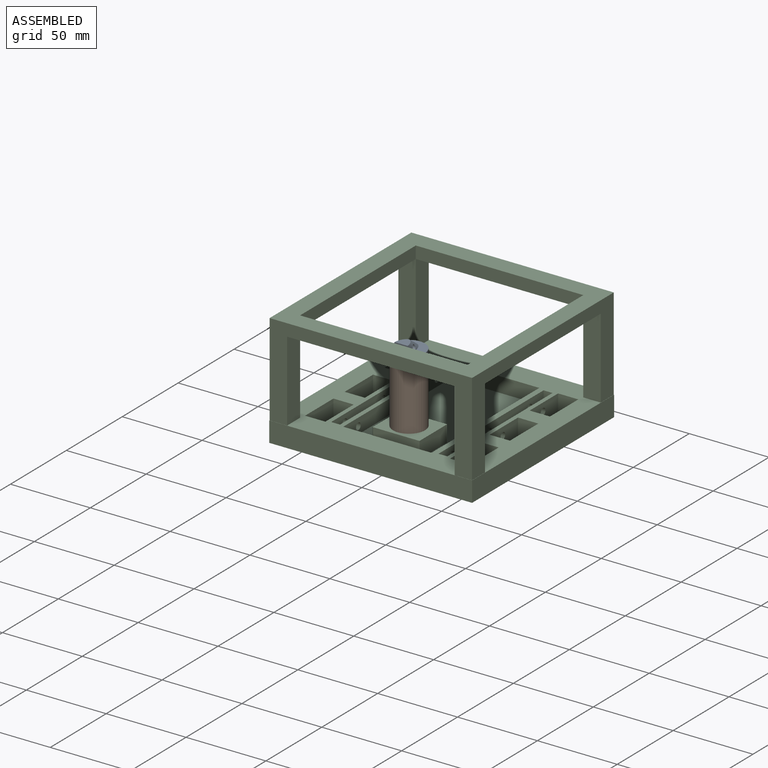
[diagram: assembled view]
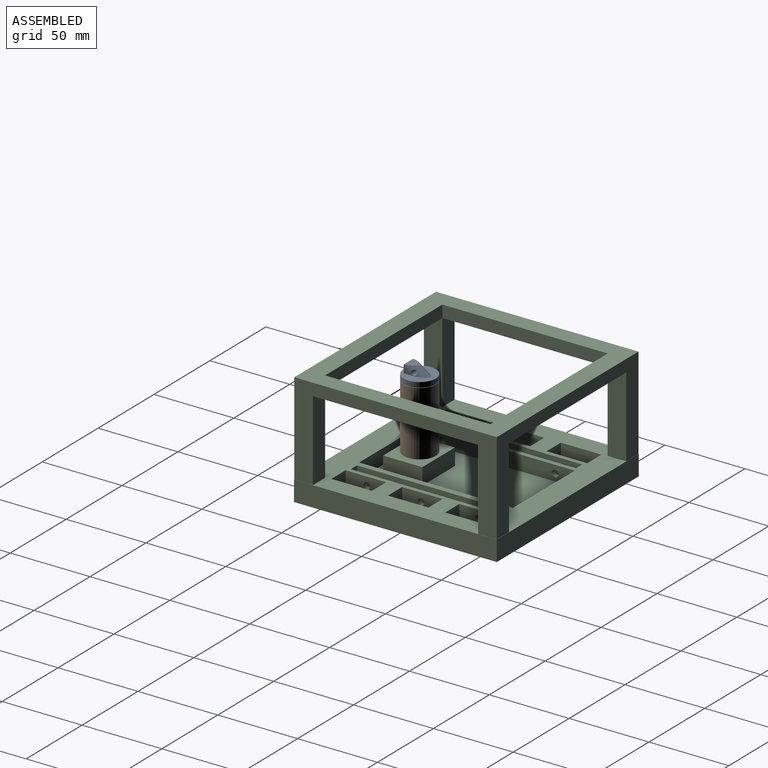
[diagram: assembled view, second angle]
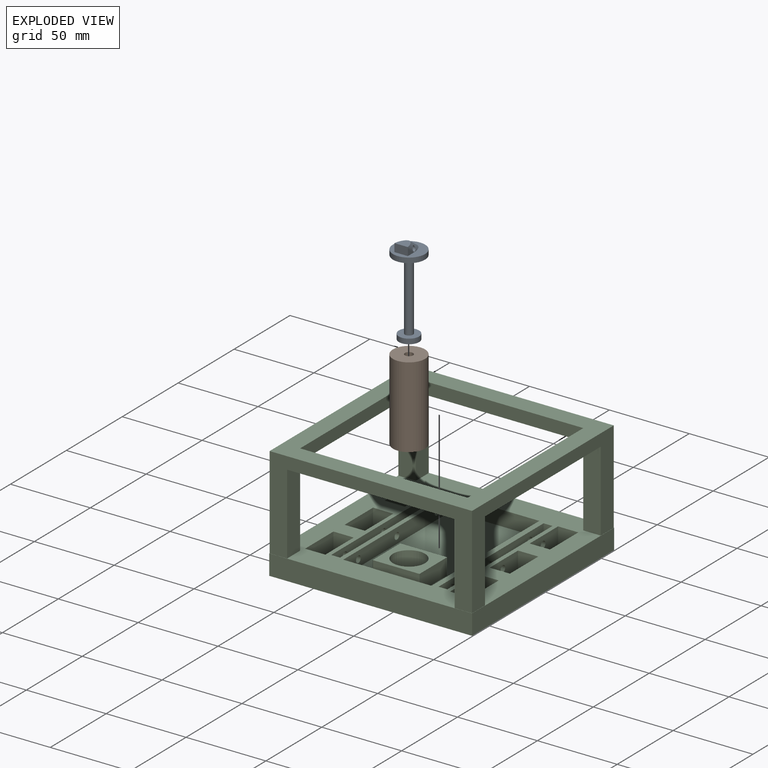
[diagram: exploded view]
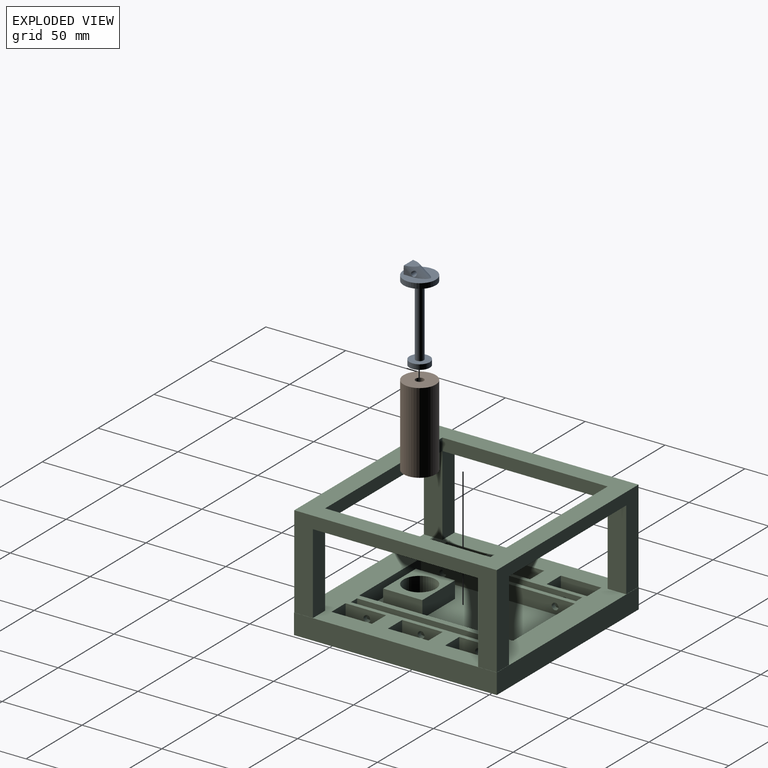
[diagram: exploded view, second angle]
ASSEMBLY  parts=3 mates=2
PART A: 14 faces, bbox 20.1x20.1x59.2 mm
  f0: plane 20.11x20.11mm, normal (0,0,1), area 217mm2, adj f5,f7,f8,f9,f11,f12
  f1: cylinder r=6.35mm len=12.7mm, axis (0,0,-1), area 126.7mm2, adj f2,f3
  f2: plane 12.7x12.7mm, normal (0,0,1), area 106.4mm2, adj f1,f4
  f3: plane 12.7x12.7mm, normal (0,0,-1), area 126.7mm2, adj f1
  f4: cylinder r=2.54mm len=44.45mm, axis (0,0,-1), area 709.4mm2, adj f2,f6
  f5: cylinder r=10.05mm len=20.11mm, axis (0,0,-1), area 200.6mm2, adj f0,f6
  f6: plane 20.11x20.11mm, normal (0,0,-1), area 297.3mm2, adj f4,f5
  f7: plane 5.42x3.9mm, normal (-1,0,0), area 10.6mm2, adj f0,f8,f11
  f8: plane 8.47x5.08mm, normal (0,-1,0), area 42.9mm2, adj f0,f7,f9,f10,f11,f12
  f9: plane 5.42x3.9mm, normal (1,0,0), area 10.6mm2, adj f0,f8,f12
  f10: plane 8.28x6.94mm, normal (0,0,1), area 40.9mm2, adj f8,f11,f12
  f11: cylinder r=5.08mm len=14.56mm, axis (0,0.81,-0.58), area 52.8mm2, adj f0,f7,f8,f10,f12,f13
  f12: cylinder r=5.08mm len=14.56mm, axis (0,-0.81,0.58), area 52.9mm2, adj f0,f8,f9,f10,f11,f13
  f13: cylinder r=1.54mm len=8.44mm, axis (-1,0,0), area 72.3mm2, adj f11,f12
PART B: 9 faces, bbox 20.1x20.1x50.8 mm
  f0: plane 12.7x12.7mm, normal (0,0,-1), area 106.4mm2, adj f1,f3
  f1: cylinder r=6.35mm len=45.47mm, axis (0,0,1), area 1814mm2, adj f0,f2
  f2: plane 12.7x12.7mm, normal (0,0,1), area 126.7mm2, adj f1
  f3: cylinder r=2.54mm len=5.08mm, axis (0,0,1), area 40.5mm2, adj f0,f8
  f4: cylinder r=10.05mm len=48.26mm, axis (0,0,-1), area 3048.6mm2, adj f5,f7
  f5: plane 20.11x20.11mm, normal (0,0,-1), area 317.6mm2, adj f4
  f6: cylinder r=10.07mm len=20.14mm, axis (0,0,1), area 160.7mm2, adj f7,f8
  f7: plane 20.14x20.14mm, normal (0,0,-1), area 1.1mm2, adj f4,f6
  f8: plane 20.14x20.14mm, normal (0,0,1), area 298.4mm2, adj f3,f6
PART C: 85 faces, bbox 127x127x70.6 mm
  f0: plane 103.5x7.6mm, normal (1,0,0), area 787mm2, adj f4,f66,f74,f77
  f1: plane 50.31x11.63mm, normal (-1,0,0), area 585.1mm2, adj f3,f9,f70,f76
  f2: plane 50.31x10.93mm, normal (0,-1,0), area 550mm2, adj f9,f67,f68,f75
  f3: plane 50.31x10.93mm, normal (0,1,0), area 550mm2, adj f1,f9,f68,f75
  f4: plane 104.9x7.6mm, normal (0,-1,0), area 797.6mm2, adj f0,f66,f72,f73
  f5: plane 50.31x11.63mm, normal (1,0,0), area 585.1mm2, adj f9,f64,f65,f73
  f6: plane 96.29x9.4mm, normal (-1,0,0), area 864mm2, adj f9,f43,f44,f45,f57,f58,f59
  f7: plane 93.97x9.91mm, normal (-1,0,0), area 889.9mm2, adj f9,f54,f55,f56,f60,f61,f62
  f8: plane 93.97x9.91mm, normal (1,0,0), area 889.9mm2, adj f9,f54,f55,f56,f57,f58,f59
  f9: plane 127x127mm, normal (0,0,1), area 7305.7mm2, adj f1,f2,f3,f5,f6,f7,f8,f13
  f10: cylinder r=2.08mm len=4.17mm, axis (1,0,0), area 36.6mm2, adj f13,f50
  f11: cylinder r=2.08mm len=4.17mm, axis (1,0,0), area 36.6mm2, adj f13,f50
  f12: cylinder r=2.08mm len=4.17mm, axis (1,0,0), area 36.6mm2, adj f13,f50
  f13: plane 96.29x9.4mm, normal (1,0,0), area 864mm2, adj f9,f10,f11,f12,f43,f44,f45
  f14: plane 127x127mm, normal (0,0,-1), area 14193.5mm2, adj f15,f16,f17,f18,f19,f20,f21,f22
  f15: plane 127x12.7mm, normal (-1,0,0), area 1612.9mm2, adj f9,f14,f16,f18
  f16: plane 127x12.7mm, normal (0,-1,0), area 1612.9mm2, adj f9,f14,f15,f17
  f17: plane 127x12.7mm, normal (1,0,0), area 1612.9mm2, adj f9,f14,f16,f18
  f18: plane 127x12.7mm, normal (0,1,0), area 1612.9mm2, adj f9,f14,f15,f17
  f19: plane 12.7x12.7mm, normal (0,-1,0), area 161.3mm2, adj f9,f14,f20,f22
  f20: plane 25.4x12.7mm, normal (1,0,0), area 322.6mm2, adj f9,f14,f19,f21
  f21: plane 12.7x12.7mm, normal (0,1,0), area 161.3mm2, adj f9,f14,f20,f22
  f22: plane 25.4x12.7mm, normal (-1,0,0), area 308.9mm2, adj f9,f14,f19,f21,f46
  f23: plane 25.4x12.7mm, normal (-1,0,0), area 322.6mm2, adj f9,f14,f24,f26
  f24: plane 12.7x12.7mm, normal (0,-1,0), area 161.3mm2, adj f9,f14,f23,f25
  f25: plane 25.4x12.7mm, normal (1,0,0), area 308.9mm2, adj f9,f14,f24,f26,f61
  f26: plane 12.7x12.7mm, normal (0,1,0), area 161.3mm2, adj f9,f14,f23,f25
  f27: plane 25.4x12.7mm, normal (-1,0,0), area 322.6mm2, adj f9,f14,f28,f30
  f28: plane 12.7x12.7mm, normal (0,-1,0), area 161.3mm2, adj f9,f14,f27,f29
  f29: plane 25.4x12.7mm, normal (1,0,0), area 308.9mm2, adj f9,f14,f28,f30,f62
  f30: plane 12.7x12.7mm, normal (0,1,0), area 161.3mm2, adj f9,f14,f27,f29
  f31: plane 12.7x12.7mm, normal (0,1,0), area 161.3mm2, adj f9,f14,f32,f34
  f32: plane 25.4x12.7mm, normal (-1,0,0), area 308.9mm2, adj f9,f14,f31,f33,f48
  f33: plane 12.7x12.7mm, normal (0,-1,0), area 161.3mm2, adj f9,f14,f32,f34
  f34: plane 25.4x12.7mm, normal (1,0,0), area 322.6mm2, adj f9,f14,f31,f33
  f35: plane 25.4x12.7mm, normal (-1,0,0), area 322.6mm2, adj f9,f14,f36,f38
  f36: plane 12.7x12.7mm, normal (0,-1,0), area 161.3mm2, adj f9,f14,f35,f37
  f37: plane 25.4x12.7mm, normal (1,0,0), area 308.9mm2, adj f9,f14,f36,f38,f60
  f38: plane 12.7x12.7mm, normal (0,1,0), area 161.3mm2, adj f9,f14,f35,f37
  f39: plane 12.7x12.7mm, normal (0,-1,0), area 161.3mm2, adj f9,f14,f40,f42
  f40: plane 25.4x12.7mm, normal (1,0,0), area 322.6mm2, adj f9,f14,f39,f41
  f41: plane 12.7x12.7mm, normal (0,1,0), area 161.3mm2, adj f9,f14,f40,f42
  f42: plane 25.4x12.7mm, normal (-1,0,0), area 308.9mm2, adj f9,f14,f39,f41,f47
  f43: plane 55.36x9.4mm, normal (0,-1,0), area 520.2mm2, adj f6,f9,f13,f45
  f44: plane 55.36x9.4mm, normal (0,1,0), area 520.2mm2, adj f6,f9,f13,f45
  f45: plane 96.29x55.36mm, normal (0,0,1), area 4613.1mm2, adj f6,f13,f43,f44,f78,f79,f80,f81
  f46: cylinder r=2.08mm len=4.17mm, axis (1,0,0), area 34.7mm2, adj f22,f49
  f47: cylinder r=2.08mm len=4.17mm, axis (1,0,0), area 34.7mm2, adj f42,f49
  f48: cylinder r=2.08mm len=4.17mm, axis (1,0,0), area 34.7mm2, adj f32,f49
  f49: plane 93.97x9.91mm, normal (1,0,0), area 889.9mm2, adj f9,f46,f47,f48,f51,f52,f53
  f50: plane 93.97x9.91mm, normal (-1,0,0), area 889.9mm2, adj f9,f10,f11,f12,f51,f52,f53
  f51: plane 9.91x5.58mm, normal (0,-1,0), area 55.3mm2, adj f9,f49,f50,f53
  f52: plane 9.91x5.58mm, normal (0,1,0), area 55.3mm2, adj f9,f49,f50,f53
  f53: plane 93.97x5.58mm, normal (0,0,1), area 524.5mm2, adj f49,f50,f51,f52
  f54: plane 9.91x5.58mm, normal (0,-1,0), area 55.3mm2, adj f7,f8,f9,f56
  f55: plane 9.91x5.58mm, normal (0,1,0), area 55.3mm2, adj f7,f8,f9,f56
  f56: plane 93.97x5.58mm, normal (0,0,1), area 524.5mm2, adj f7,f8,f54,f55
  f57: cylinder r=2.08mm len=4.17mm, axis (-1,0,0), area 45.7mm2, adj f6,f8
  f58: cylinder r=2.08mm len=4.17mm, axis (-1,0,0), area 45.7mm2, adj f6,f8
  f59: cylinder r=2.08mm len=4.17mm, axis (-1,0,0), area 45.7mm2, adj f6,f8
  f60: cylinder r=2.08mm len=4.17mm, axis (-1,0,0), area 34.7mm2, adj f7,f37
  f61: cylinder r=2.08mm len=4.17mm, axis (-1,0,0), area 34.7mm2, adj f7,f25
  f62: cylinder r=2.08mm len=4.17mm, axis (-1,0,0), area 34.7mm2, adj f7,f29
  f63: plane 126.76x57.91mm, normal (-1,0,0), area 2133.9mm2, adj f9,f64,f65,f66,f69,f70,f74
  f64: plane 50.31x10.93mm, normal (0,-1,0), area 550mm2, adj f5,f9,f63,f74
  f65: plane 126.76x57.91mm, normal (0,1,0), area 2063.7mm2, adj f5,f9,f63,f66,f67,f68,f73
  f66: plane 126.76x126.76mm, normal (0,0,1), area 5211.1mm2, adj f0,f4,f63,f65,f68,f70,f72,f77
  f67: plane 50.31x11.63mm, normal (-1,0,0), area 585.1mm2, adj f2,f9,f65,f73
  f68: plane 126.76x57.91mm, normal (1,0,0), area 2133.9mm2, adj f2,f3,f9,f65,f66,f70,f75
  f69: plane 50.31x10.93mm, normal (0,1,0), area 550mm2, adj f9,f63,f71,f74
  f70: plane 126.76x57.91mm, normal (0,-1,0), area 2063.7mm2, adj f1,f9,f63,f66,f68,f71,f76
  f71: plane 50.31x11.63mm, normal (1,0,0), area 585.1mm2, adj f9,f69,f70,f76
  f72: plane 103.5x7.6mm, normal (-1,0,0), area 787mm2, adj f4,f66,f75,f77
  f73: plane 104.9x11.63mm, normal (0,0,-1), area 1219.9mm2, adj f4,f5,f65,f67
  f74: plane 103.5x10.93mm, normal (0,0,-1), area 1131.4mm2, adj f0,f63,f64,f69
  f75: plane 103.5x10.93mm, normal (0,0,-1), area 1131.4mm2, adj f2,f3,f68,f72
  f76: plane 104.9x11.63mm, normal (0,0,-1), area 1219.9mm2, adj f1,f70,f71,f77
  f77: plane 104.9x7.6mm, normal (0,1,0), area 797.6mm2, adj f0,f66,f72,f76
  f78: plane 24.53x10.41mm, normal (-1,0,0), area 255.5mm2, adj f45,f79,f81,f82
  f79: plane 29.23x10.41mm, normal (0,-1,0), area 304.4mm2, adj f45,f78,f80,f82
  f80: plane 24.53x10.41mm, normal (1,0,0), area 255.5mm2, adj f45,f79,f81,f82
  f81: plane 29.23x10.41mm, normal (0,1,0), area 304.4mm2, adj f45,f78,f80,f82
  f82: plane 29.23x24.53mm, normal (0,0,1), area 399.6mm2, adj f78,f79,f80,f81,f83
  f83: cylinder r=10.05mm len=20.11mm, axis (0,0,1), area 657.9mm2, adj f82,f84
  f84: plane 20.11x20.11mm, normal (0,0,1), area 317.6mm2, adj f83
PLACE A t=(-10.34,-35.81,-13.15)mm
PLACE B t=(-10.34,-35.81,-16.51)mm
PLACE C t=(-10.34,-6.56,-19.82)mm
MATE fastened B.f4 <-> C.f83  axis (0,0,-1) through (-10.34,-35.81,-16.51)mm
MATE slider A.f1 <-> B.f1  axis (0,0,-1) through (-10.34,-35.81,-11.56)mm
